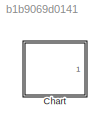
MODEL slx_b1b9069d0141
KIND model
CONFIG AbsTol = auto
CONFIG EnableMultiTasking = on
CONFIG FixedStep = 0.1
CONFIG MaxStep = auto
CONFIG MinStep = auto
CONFIG RelTol = 1e-3
CONFIG SampleTimeConstraint = Unconstrained
CONFIG Solver = FixedStepDiscrete
CONFIG SolverName = FixedStepDiscrete
CONFIG StartTime = 0.0
CONFIG StopTime = 60.0
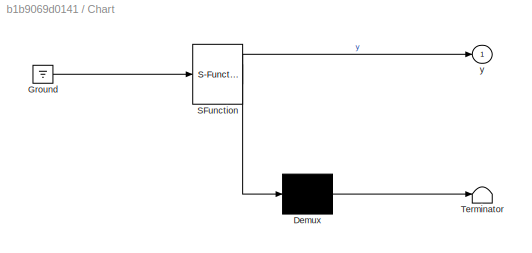
BLOCK [SubSystem] Chart
  ErrorFcn = Stateflow.Translate.translate
  PermitHierarchicalResolution = ExplicitOnly
  Ports = [0, 1]
  RequestExecContextInheritance = off
  SFBlockType = Chart
  TreatAsAtomicUnit = on
BLOCK [Demux] Chart/ Demux 
  Outputs = 1
  Ports = [1, 1]
BLOCK [Ground] Chart/ Ground 
BLOCK [S-Function] Chart/ SFunction 
  EnableBusSupport = off
  FunctionName = sf_sfun
  PortCounts = [1 2]
  Ports = [1, 2]
  SFcnIsStateOwnerBlock = off
  SFunctionDeploymentMode = off
  Tag = Stateflow S-Function 3
BLOCK [Terminator] Chart/ Terminator 
BLOCK [Outport] Chart/y
  IconDisplay = Port number
CHART Chart states=6 transitions=6
  STATE_LABEL 'LEDS FOR: Calibration(flashing red vs steady for), Battery(steady Orange), Pause(Green steady for take a break, flashing  for ) '
  STATE_LABEL 'Standby\n\nentry: y = -1;\n ButtonState = PollButton();\n RecordErgonomics();\n BatteryStates = CheckBattery();\n RecordTimeSinceLastBreak();\n CheckCalibration();\n ScanForScrewHeads();\n DetectScrewDriver();\n SelectCorrectDriver();\n connection = CheckInternetConn(); % then if ON send data\n CheckEncoder();\n while(~button)\n     if(RecordTimeSinceLastBreak()>BreakThreshold)\n         {\n             Flash(Bre...<+213ch>'
  STATE_LABEL 'Run % Parent State'
  STATE_LABEL 'High % Child State\nApproachedScrew= a;\nentry: ButtonState = b;\n CalibrationState = c;\n if(ApproachedScrew&&\n     ButtonState&&\n     CalibrationState){\n     ApplyTorque(ScrewType)\n     }\n     RecordTorque();\n     RecordScrewHole();\n     if(RecordTorque()~=TorqueScrewType(ScrewType))\n         Flash(Decalibrated, ON, secondsWarning)\n        \n         if(outsideTorqueRange(ScrewType){\n             Fla...<+70ch>'
  STATE_LABEL 'Low % Child State\nentry: y = 1;'
  STATE_LABEL 'after(1,sec)'
  STATE_LABEL 'after(1,sec)'
  STATE_LABEL 'High % Child State\nApproachedScrew= a;\nentry: ButtonState = b;\n CalibrationState = c;\n if(ApproachedScrew&&\n     ButtonState&&\n     CalibrationState){\n     ApplyTorque(ScrewType)\n     }\n     RecordTorque();\n     RecordScrewHole();\n     if(RecordTorque()~=TorqueScrewType(ScrewType))\n         Flash(Decalibrated, ON, secondsWarning)\n        \n         if(outsideTorqueRange(ScrewType){\n             Fla...<+70ch>'
  STATE_LABEL 'Low % Child State\nentry: y = 1;'
  STATE_LABEL '<!DOCTYPE HTML PUBLIC "-//W3C//DTD HTML 4.0//EN" "http://www.w3.org/TR/REC-html40/strict.dtd">\n<html><head><meta name="qrichtext" content="1" /><style type="text/css">\np, li { white-space: pre-wrap; }\n</style></head><body style=" font-family:\'Helvetica\'; font-size:12px; font-weight:400; font-style:normal;">\n<p style=" margin-top:0px; margin-bottom:0px; margin-left:0px; margin-right:0px; -qt-block-...<+691ch>'
